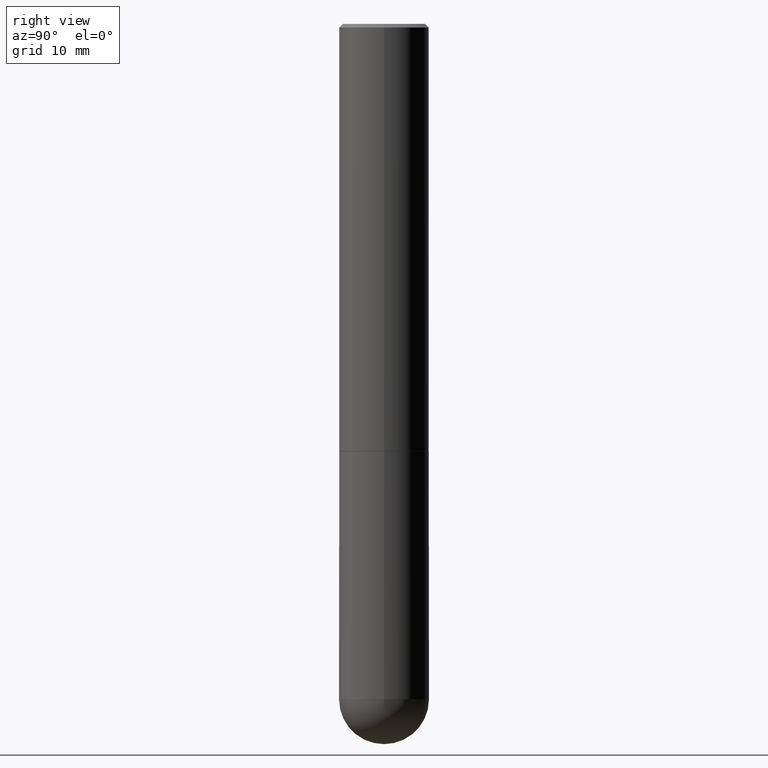
[diagram: clean part render]
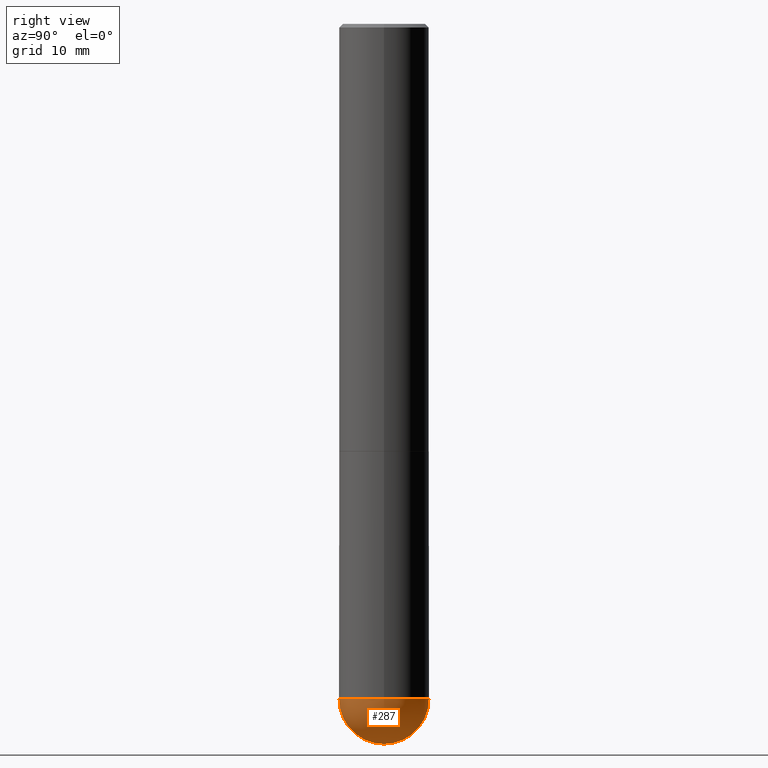
[diagram: same view with one face highlighted and labeled with its STEP entity id]
A machine part, right view. The second image highlights one B-rep face of the part: STEP entity #287.
In plain terms, the highlighted spherical surface has radius 6.35 mm.
Its self-contained STEP definition (entity closure, byte-faithful):
#13 = CIRCLE ( 'NONE', #245, 0.2500000000000001110 ) ;
#20 = CIRCLE ( 'NONE', #273, 0.2500000000000001110 ) ;
#21 = VERTEX_POINT ( 'NONE', #189 ) ;
#30 = DIRECTION ( 'NONE',  ( 1.000000000000000000, -6.982962677686262766E-15, 0.000000000000000000 ) ) ;
#43 = DIRECTION ( 'NONE',  ( 1.000000000000000000, -6.982962677686262766E-15, 0.000000000000000000 ) ) ;
#49 = VERTEX_POINT ( 'NONE', #105 ) ;
#58 = AXIS2_PLACEMENT_3D ( 'NONE', #62, #218, #30 ) ;
#62 = CARTESIAN_POINT ( 'NONE',  ( 9.170508023194262238E-29, -1.309305502066179741E-14, -3.750000000000000000 ) ) ;
#70 = CARTESIAN_POINT ( 'NONE',  ( 8.839388245280375991E-29, -1.356723738880184771E-14, -3.750000000000000000 ) ) ;
#71 = DIRECTION ( 'NONE',  ( 6.982962677686265922E-15, 1.000000000000000000, -4.370956789862818783E-15 ) ) ;
#75 = DIRECTION ( 'NONE',  ( -7.105427357601001859E-15, -1.000000000000000000, 0.000000000000000000 ) ) ;
#82 = VERTEX_POINT ( 'NONE', #410 ) ;
#85 = CARTESIAN_POINT ( 'NONE',  ( 8.839388245280375991E-29, -1.356723738880184771E-14, -3.750000000000000000 ) ) ;
#90 = ORIENTED_EDGE ( 'NONE', *, *, #374, .F. ) ;
#105 = CARTESIAN_POINT ( 'NONE',  ( 1.745740669421657002E-15, 0.2499999999999867606, -3.750000000000001332 ) ) ;
#110 = CARTESIAN_POINT ( 'NONE',  ( 9.461445025441403338E-29, -1.442479963852329389E-14, -4.000000000000000888 ) ) ;
#138 = EDGE_CURVE ( 'NONE', #21, #49, #367, .T. ) ;
#144 = EDGE_LOOP ( 'NONE', ( #90, #375, #307, #185 ) ) ;
#161 = AXIS2_PLACEMENT_3D ( 'NONE', #272, #387, #43 ) ;
#185 = ORIENTED_EDGE ( 'NONE', *, *, #233, .F. ) ;
#189 = CARTESIAN_POINT ( 'NONE',  ( 0.2500000000000000000, -1.243840226962870281E-14, -3.750000000000000000 ) ) ;
#208 = AXIS2_PLACEMENT_3D ( 'NONE', #70, #325, #71 ) ;
#218 = DIRECTION ( 'NONE',  ( -2.445468806185136597E-29, 3.491481338843145583E-15, 1.000000000000000000 ) ) ;
#229 = SPHERICAL_SURFACE ( 'NONE', #208, 0.2500000000000001110 ) ;
#232 = DIRECTION ( 'NONE',  ( 6.982962677686266711E-15, 1.000000000000000000, 0.000000000000000000 ) ) ;
#233 = EDGE_CURVE ( 'NONE', #82, #21, #389, .T. ) ;
#234 = DIRECTION ( 'NONE',  ( -1.000000000000000000, 7.105427357601001070E-15, -4.926315508542082329E-29 ) ) ;
#245 = AXIS2_PLACEMENT_3D ( 'NONE', #85, #234, #75 ) ;
#265 = EDGE_CURVE ( 'NONE', #341, #49, #20, .T. ) ;
#272 = CARTESIAN_POINT ( 'NONE',  ( 9.170508023194262238E-29, -1.309305502066179741E-14, -3.750000000000000000 ) ) ;
#273 = AXIS2_PLACEMENT_3D ( 'NONE', #351, #288, #232 ) ;
#287 = ADVANCED_FACE ( 'NONE', ( #291 ), #229, .T. ) ;
#288 = DIRECTION ( 'NONE',  ( 1.000000000000000000, -6.982962677686265922E-15, 4.883557194083112340E-29 ) ) ;
#291 = FACE_OUTER_BOUND ( 'NONE', #144, .T. ) ;
#307 = ORIENTED_EDGE ( 'NONE', *, *, #138, .F. ) ;
#325 = DIRECTION ( 'NONE',  ( -1.000000000000000000, 6.982962677686265922E-15, -4.883557194083113462E-29 ) ) ;
#341 = VERTEX_POINT ( 'NONE', #110 ) ;
#351 = CARTESIAN_POINT ( 'NONE',  ( 8.839388245280375991E-29, -1.356723738880184771E-14, -3.750000000000000000 ) ) ;
#367 = CIRCLE ( 'NONE', #58, 0.2500000000000000000 ) ;
#374 = EDGE_CURVE ( 'NONE', #341, #82, #13, .T. ) ;
#375 = ORIENTED_EDGE ( 'NONE', *, *, #265, .T. ) ;
#387 = DIRECTION ( 'NONE',  ( -2.445468806185136597E-29, 3.491481338843145583E-15, 1.000000000000000000 ) ) ;
#389 = CIRCLE ( 'NONE', #161, 0.2500000000000000000 ) ;
#410 = CARTESIAN_POINT ( 'NONE',  ( -1.776356839400160732E-15, -0.2500000000000133782, -3.749999999999999112 ) ) ;